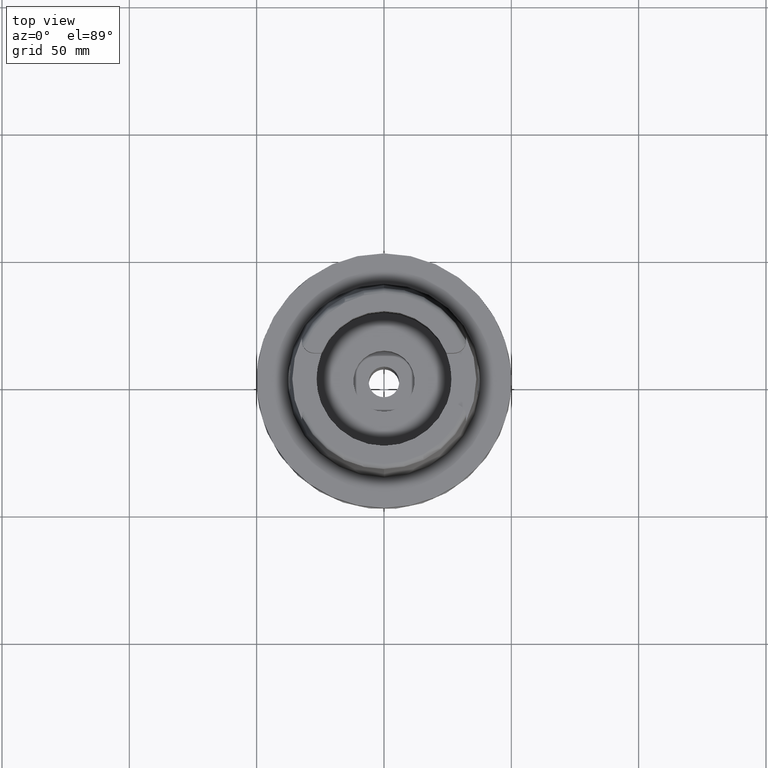
[diagram: clean part render]
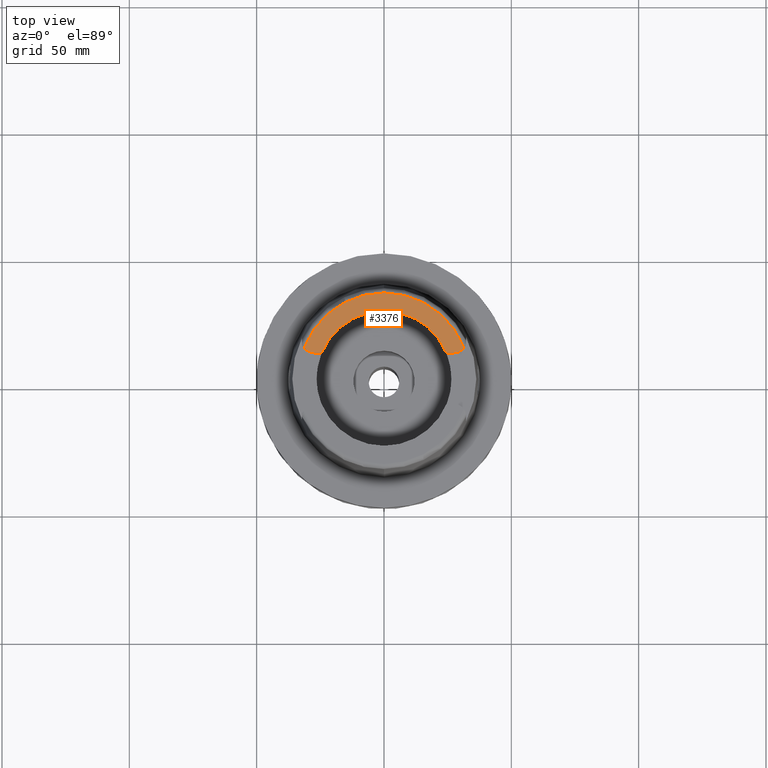
[diagram: same view with one face highlighted and labeled with its STEP entity id]
A machine part, top view. The second image highlights one B-rep face of the part: STEP entity #3376.
In plain terms, the highlighted planar face has unit normal (0, 0, 1).
Its self-contained STEP definition (entity closure, byte-faithful):
#180 = DIRECTION ( 'NONE',  ( 0.9259134021805098813, 0.3777358490566039562, 0.0000000000000000000 ) ) ;
#279 = VERTEX_POINT ( 'NONE', #567 ) ;
#331 = AXIS2_PLACEMENT_3D ( 'NONE', #3282, #4667, #930 ) ;
#347 = DIRECTION ( 'NONE',  ( 0.0000000000000000000, 0.0000000000000000000, -1.000000000000000000 ) ) ;
#450 = CARTESIAN_POINT ( 'NONE',  ( 31.35385269249000473, 12.07161079256999869, 50.00000000000000000 ) ) ;
#567 = CARTESIAN_POINT ( 'NONE',  ( 27.36999999999999744, 10.00999999999999979, 50.00000000000000000 ) ) ;
#603 = CIRCLE ( 'NONE', #3688, 26.50000000000000000 ) ;
#641 = CARTESIAN_POINT ( 'NONE',  ( -27.36999999999999744, 10.00999999999999979, 50.00000000000000000 ) ) ;
#736 = ORIENTED_EDGE ( 'NONE', *, *, #3861, .F. ) ;
#769 = AXIS2_PLACEMENT_3D ( 'NONE', #2435, #5260, #180 ) ;
#775 = CIRCLE ( 'NONE', #769, 26.50000000000000711 ) ;
#800 = DIRECTION ( 'NONE',  ( 1.000000000000000000, -1.423194637337000101E-13, 0.0000000000000000000 ) ) ;
#930 = DIRECTION ( 'NONE',  ( 1.000000000000000000, 0.0000000000000000000, 0.0000000000000000000 ) ) ;
#1141 = ORIENTED_EDGE ( 'NONE', *, *, #2529, .T. ) ;
#1251 = VERTEX_POINT ( 'NONE', #2024 ) ;
#1298 = DIRECTION ( 'NONE',  ( 0.0000000000000000000, 0.0000000000000000000, -1.000000000000000000 ) ) ;
#1375 = PLANE ( 'NONE',  #331 ) ;
#1539 = DIRECTION ( 'NONE',  ( 0.0000000000000000000, 0.0000000000000000000, -1.000000000000000000 ) ) ;
#1694 = CARTESIAN_POINT ( 'NONE',  ( 24.53670515777999839, 10.00999999999999979, 50.00000000000000000 ) ) ;
#2024 = CARTESIAN_POINT ( 'NONE',  ( -24.53670515777999839, 10.00999999999999979, 50.00000000000000000 ) ) ;
#2157 = VERTEX_POINT ( 'NONE', #5246 ) ;
#2224 = CARTESIAN_POINT ( 'NONE',  ( 24.53670515777999839, 10.00999999999999979, 50.00000000000000000 ) ) ;
#2309 = CIRCLE ( 'NONE', #4201, 4.880000000000001670 ) ;
#2354 = VERTEX_POINT ( 'NONE', #3847 ) ;
#2435 = CARTESIAN_POINT ( 'NONE',  ( 0.0000000000000000000, 0.0000000000000000000, 50.00000000000000000 ) ) ;
#2514 = CARTESIAN_POINT ( 'NONE',  ( 27.36999999999999744, 14.89000000000000057, 50.00000000000000000 ) ) ;
#2528 = DIRECTION ( 'NONE',  ( 1.000000000000000000, 1.429464217237000036E-13, 0.0000000000000000000 ) ) ;
#2529 = EDGE_CURVE ( 'NONE', #3827, #279, #5051, .T. ) ;
#2687 = DIRECTION ( 'NONE',  ( -0.9332215253017949186, 0.3593015233941980191, 0.0000000000000000000 ) ) ;
#2797 = ORIENTED_EDGE ( 'NONE', *, *, #5993, .F. ) ;
#2846 = ORIENTED_EDGE ( 'NONE', *, *, #4915, .T. ) ;
#2898 = ORIENTED_EDGE ( 'NONE', *, *, #4849, .F. ) ;
#2908 = VECTOR ( 'NONE', #800, 1000.000000000000000 ) ;
#3011 = DIRECTION ( 'NONE',  ( 0.0000000000000000000, 0.0000000000000000000, 1.000000000000000000 ) ) ;
#3111 = CARTESIAN_POINT ( 'NONE',  ( -27.36999999999999744, 14.89000000000000057, 50.00000000000000000 ) ) ;
#3282 = CARTESIAN_POINT ( 'NONE',  ( 0.0000000000000000000, 0.0000000000000000000, 50.00000000000000000 ) ) ;
#3372 = CIRCLE ( 'NONE', #5238, 4.879999999999999005 ) ;
#3376 = ADVANCED_FACE ( 'NONE', ( #3823 ), #1375, .T. ) ;
#3454 = DIRECTION ( 'NONE',  ( 0.0000000000000000000, 1.000000000000000000, 0.0000000000000000000 ) ) ;
#3564 = EDGE_CURVE ( 'NONE', #5630, #279, #2309, .T. ) ;
#3688 = AXIS2_PLACEMENT_3D ( 'NONE', #4410, #3011, #3454 ) ;
#3823 = FACE_OUTER_BOUND ( 'NONE', #5516, .T. ) ;
#3827 = VERTEX_POINT ( 'NONE', #1694 ) ;
#3847 = CARTESIAN_POINT ( 'NONE',  ( -27.36999999999999744, 10.00999999999999979, 50.00000000000000000 ) ) ;
#3861 = EDGE_CURVE ( 'NONE', #2354, #2157, #3372, .T. ) ;
#3881 = DIRECTION ( 'NONE',  ( 0.8163632566568778115, -0.5775387720149849358, 0.0000000000000000000 ) ) ;
#3945 = AXIS2_PLACEMENT_3D ( 'NONE', #4525, #1298, #2687 ) ;
#3975 = CARTESIAN_POINT ( 'NONE',  ( 0.0000000000000000000, 26.50000000000000000, 50.00000000000000000 ) ) ;
#4046 = CIRCLE ( 'NONE', #3945, 33.59743838135999994 ) ;
#4201 = AXIS2_PLACEMENT_3D ( 'NONE', #2514, #1539, #3881 ) ;
#4410 = CARTESIAN_POINT ( 'NONE',  ( 0.0000000000000000000, 0.0000000000000000000, 50.00000000000000000 ) ) ;
#4467 = EDGE_CURVE ( 'NONE', #2157, #5630, #4046, .T. ) ;
#4525 = CARTESIAN_POINT ( 'NONE',  ( 0.0000000000000000000, 0.0000000000000000000, 50.00000000000000000 ) ) ;
#4667 = DIRECTION ( 'NONE',  ( 0.0000000000000000000, 0.0000000000000000000, 1.000000000000000000 ) ) ;
#4730 = VECTOR ( 'NONE', #2528, 1000.000000000000000 ) ;
#4849 = EDGE_CURVE ( 'NONE', #3827, #5813, #775, .T. ) ;
#4854 = LINE ( 'NONE', #641, #4730 ) ;
#4915 = EDGE_CURVE ( 'NONE', #2354, #1251, #4854, .T. ) ;
#5051 = LINE ( 'NONE', #2224, #2908 ) ;
#5238 = AXIS2_PLACEMENT_3D ( 'NONE', #3111, #347, #6044 ) ;
#5246 = CARTESIAN_POINT ( 'NONE',  ( -31.35385269249000473, 12.07161079256999869, 50.00000000000000000 ) ) ;
#5260 = DIRECTION ( 'NONE',  ( 0.0000000000000000000, 0.0000000000000000000, 1.000000000000000000 ) ) ;
#5333 = ORIENTED_EDGE ( 'NONE', *, *, #3564, .F. ) ;
#5516 = EDGE_LOOP ( 'NONE', ( #2846, #2797, #2898, #1141, #5333, #5956, #736 ) ) ;
#5630 = VERTEX_POINT ( 'NONE', #450 ) ;
#5813 = VERTEX_POINT ( 'NONE', #3975 ) ;
#5956 = ORIENTED_EDGE ( 'NONE', *, *, #4467, .F. ) ;
#5993 = EDGE_CURVE ( 'NONE', #5813, #1251, #603, .T. ) ;
#6044 = DIRECTION ( 'NONE',  ( 0.0000000000000000000, -1.000000000000000000, 0.0000000000000000000 ) ) ;